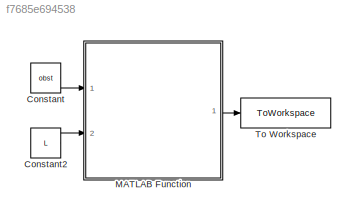
MODEL slx_f7685e694538
KIND model
CONFIG AbsTol = auto
CONFIG EnableMultiTasking = off
CONFIG FixedStep = auto
CONFIG MaxStep = auto
CONFIG MinStep = auto
CONFIG RelTol = 1e-3
CONFIG SampleTimeConstraint = Unconstrained
CONFIG SolverName = VariableStepAuto
CONFIG StartTime = 0.0
CONFIG StopTime = 1
BLOCK [Constant] Constant
  Value = obst
BLOCK [Constant] Constant2
  Value = L
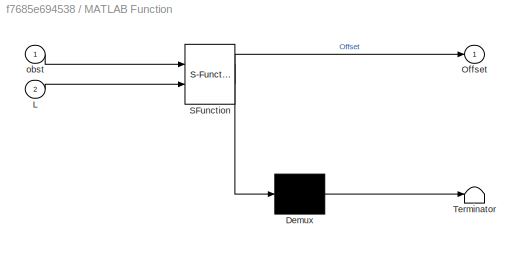
BLOCK [SubSystem] MATLAB Function
  ErrorFcn = Stateflow.Translate.translate
  PermitHierarchicalResolution = ExplicitOnly
  Ports = [2, 1]
  RequestExecContextInheritance = off
  SFBlockType = MATLAB Function
  TreatAsAtomicUnit = on
BLOCK [Demux] MATLAB Function/ Demux 
  Outputs = 1
  Ports = [1, 1]
BLOCK [S-Function] MATLAB Function/ SFunction 
  EnableBusSupport = on
  FunctionName = sf_sfun
  PortCounts = [2 2]
  Ports = [2, 2]
  SFcnIsStateOwnerBlock = off
  SFunctionDeploymentMode = off
  Tag = Stateflow S-Function 2
BLOCK [Terminator] MATLAB Function/ Terminator 
BLOCK [Inport] MATLAB Function/L
  Port = 2
BLOCK [Outport] MATLAB Function/Offset
  VectorParamsAs1DForOutWhenUnconnected = off
BLOCK [Inport] MATLAB Function/obst
BLOCK [ToWorkspace] To Workspace
  Decimation = 2
  FixptAsFi = on
  MaxDataPoints = inf
  Ports = [1]
  SampleTime = 1
  VariableName = Offset
LINE Constant2:1 -> MATLAB Function:2
LINE Constant:1 -> MATLAB Function:1
LINE MATLAB Function:1 -> To Workspace:1
CHART MATLAB Function states=1 transitions=1
  STATE_LABEL 'eML_blk_kernel()'
  STATE_LABEL 'SCRIPT:\nfunction Offset = fcn(obst,L)\nL=-L;\nOffset=zeros(size(obst));\na=size(obst);\nN=a(1);\nfor i=1:N\n    if i>1\n    pre = i-1;\n    else \n      pre = N; \n    end\n    if i<N\n     post = i+1;\n    else \n      post = 1; \n    end\nX1=((obst(i,1)-obst(pre,1))/sqrt((obst(i,1)-obst(pre,1))^2+((obst(i,2)-obst(pre,2)))^2));\nX2=((obst(i,1)-obst(post,1))/sqrt((obst(i,1)-obst(post,1))^2+((obst(i,2)-obst(post,2)...<+583ch>'
CHART  states=0 transitions=0
